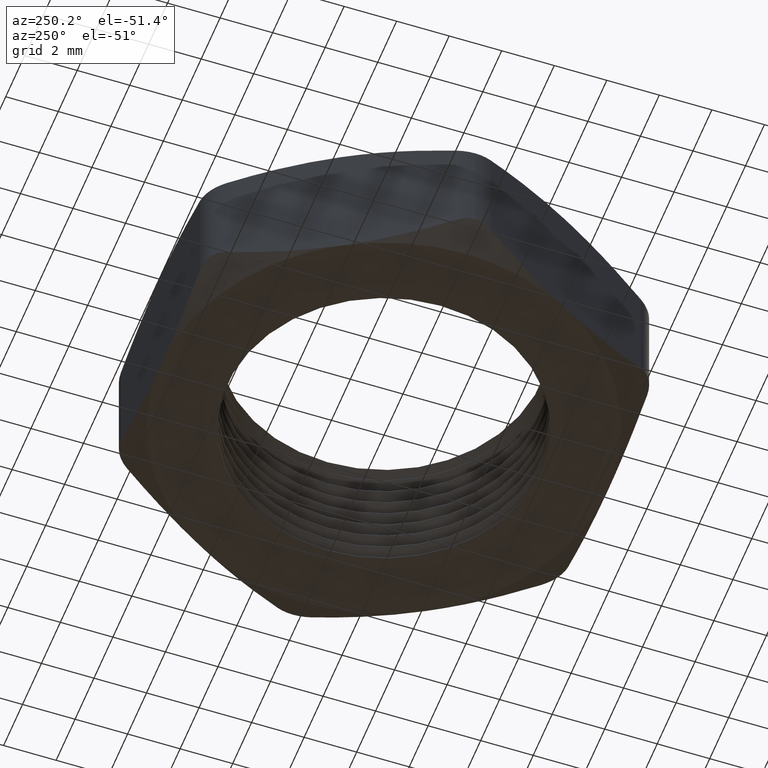
[diagram: clean part render]
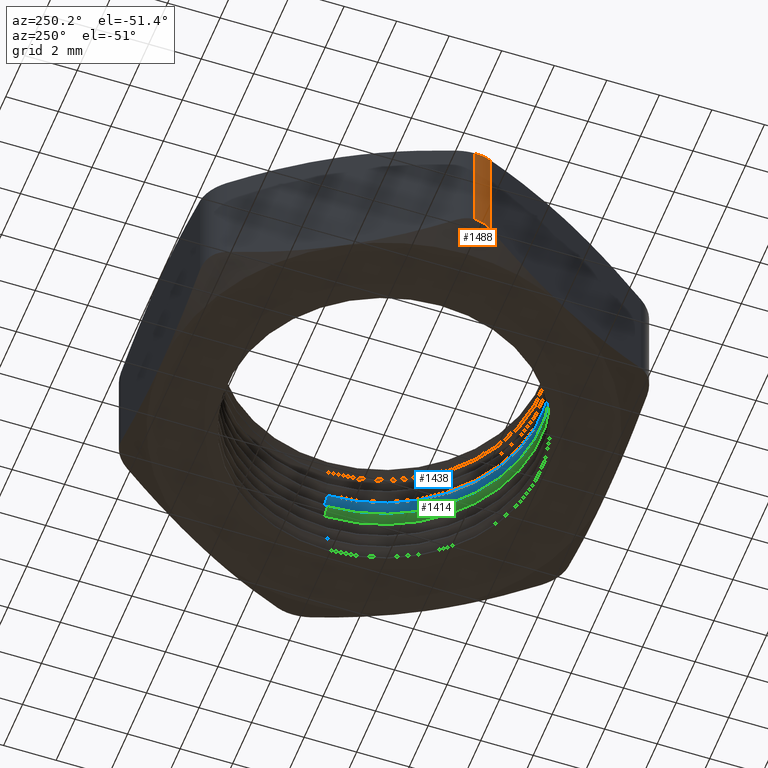
[diagram: same view with three faces highlighted in distinct colors, each labeled with its STEP entity id]
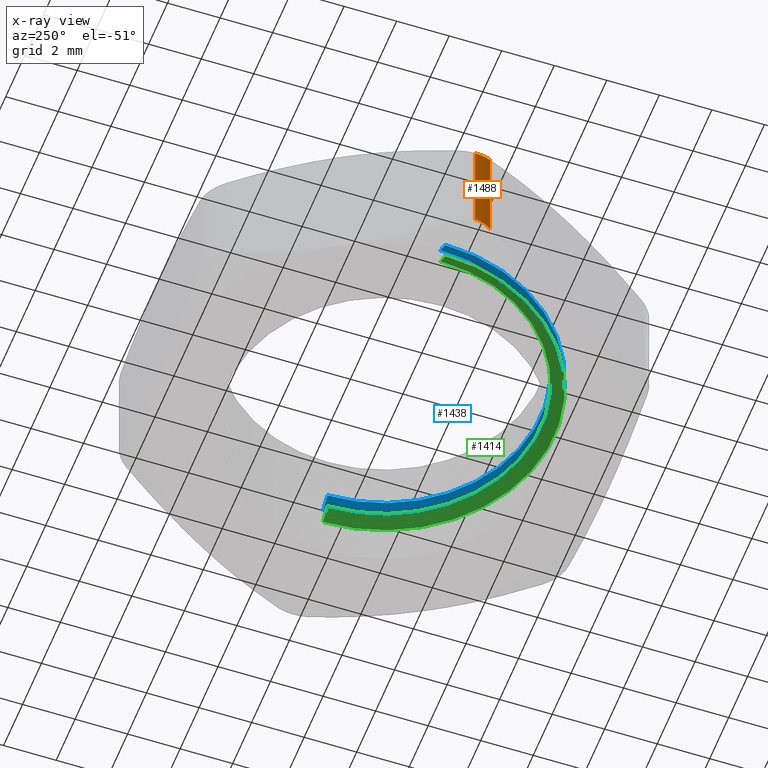
[diagram: x-ray of the same camera — body ghosted, the three highlighted faces saturated]
A machine part, auxiliary view with three faces highlighted in distinct colors.
The next image is the same camera in x-ray (body ghosted, the three faces saturated) — at least one of them is partly hidden behind the body in this view.
Their STEP definitions:

[orange] entity #1488 — the highlighted cylindrical surface (edge-blend (fillet) strip) has radius 1.27 mm, axis along (0, 0, -1).
#93 = DIRECTION ( 'NONE',  ( 0.0000000000000000000, 0.0000000000000000000, -1.000000000000000000 ) ) ;
#94 = VECTOR ( 'NONE', #93, 39.37007874015748100 ) ;
#95 = CARTESIAN_POINT ( 'NONE',  ( -0.3723909236273086300, -0.02499999999999983800, 0.2000000000000000100 ) ) ;
#96 = LINE ( 'NONE', #95, #94 ) ;
#610 = CARTESIAN_POINT ( 'NONE',  ( -0.3723909236273086300, -0.02499999999999975500, 0.02207161127339470400 ) ) ;
#611 = DIRECTION ( 'NONE',  ( -1.000000000000000000, 0.0000000000000000000, 0.0000000000000000000 ) ) ;
#612 = DIRECTION ( 'NONE',  ( 0.0000000000000000000, 0.0000000000000000000, -1.000000000000000000 ) ) ;
#613 = CARTESIAN_POINT ( 'NONE',  ( -0.3290896534380866600, 1.152498372327111000E-016, 0.2000000000000000100 ) ) ;
#614 = AXIS2_PLACEMENT_3D ( 'NONE', #613, #612, #611 ) ;
#615 = CYLINDRICAL_SURFACE ( 'NONE', #614, 0.05000000000000001000 ) ;
#616 = FACE_OUTER_BOUND ( 'NONE', #1484, .T. ) ;
#620 = CARTESIAN_POINT ( 'NONE',  ( -0.3723909236273086300, -0.02499999999999984900, 0.1779283887266050500 ) ) ;
#621 = CARTESIAN_POINT ( 'NONE',  ( -0.3745427104477402300, -0.02127299589995569300, 0.1768329772520503300 ) ) ;
#622 = CARTESIAN_POINT ( 'NONE',  ( -0.3762331691085615300, -0.01721539816637658900, 0.1759804665609513700 ) ) ;
#623 = CARTESIAN_POINT ( 'NONE',  ( -0.3784961774440683300, -0.008824760021981062000, 0.1748417381203157300 ) ) ;
#624 = CARTESIAN_POINT ( 'NONE',  ( -0.3790896534380835400, -0.004386855205189923500, 0.1745448267190450600 ) ) ;
#625 = CARTESIAN_POINT ( 'NONE',  ( -0.3790896534382614000, -2.031860639847280700E-014, 0.1745448267189560200 ) ) ;
#628 = B_SPLINE_CURVE_WITH_KNOTS ( 'NONE', 3,
 ( #625, #624, #623, #622, #621, #620 ),
 .UNSPECIFIED., .F., .F.,
 ( 4, 2, 4 ),
 ( 0.0006696470749432705500, 0.001003406031083166900, 0.001337164987223063600 ),
 .UNSPECIFIED. ) ;
#637 = CARTESIAN_POINT ( 'NONE',  ( -0.3790896534382614000, 2.043385621942243500E-014, 0.02545517328104399500 ) ) ;
#638 = CARTESIAN_POINT ( 'NONE',  ( -0.3790896534380897000, -0.004400847830842706500, 0.02545517328095795900 ) ) ;
#639 = CARTESIAN_POINT ( 'NONE',  ( -0.3785021646700598200, -0.008811739698045753900, 0.02516128404701351700 ) ) ;
#640 = CARTESIAN_POINT ( 'NONE',  ( -0.3762129347330971900, -0.01728118580269577900, 0.02400934215641796100 ) ) ;
#641 = CARTESIAN_POINT ( 'NONE',  ( -0.3745489581288084000, -0.02126217459891548100, 0.02317020325889368100 ) ) ;
#642 = CARTESIAN_POINT ( 'NONE',  ( -0.3723909236273086300, -0.02499999999999975500, 0.02207161127339470400 ) ) ;
#647 = B_SPLINE_CURVE_WITH_KNOTS ( 'NONE', 3,
 ( #642, #641, #640, #639, #638, #637 ),
 .UNSPECIFIED., .F., .F.,
 ( 4, 2, 4 ),
 ( 6.594944350062753400E-019, 0.0003348235374713606500, 0.0006696470749427206400 ),
 .UNSPECIFIED. ) ;
#648 = CARTESIAN_POINT ( 'NONE',  ( -0.3790896534382614000, 2.043385621942243500E-014, 0.02545517328104399500 ) ) ;
#649 = DIRECTION ( 'NONE',  ( 0.0000000000000000000, 0.0000000000000000000, -1.000000000000000000 ) ) ;
#650 = VECTOR ( 'NONE', #649, 39.37007874015748100 ) ;
#651 = CARTESIAN_POINT ( 'NONE',  ( -0.3790896534380867000, 1.152498372327111000E-016, 0.2000000000000000100 ) ) ;
#652 = LINE ( 'NONE', #651, #650 ) ;
#653 = CARTESIAN_POINT ( 'NONE',  ( -0.3723909236273086300, -0.02499999999999984900, 0.1779283887266050500 ) ) ;
#659 = CARTESIAN_POINT ( 'NONE',  ( -0.3790896534382614000, -2.031860639847280700E-014, 0.1745448267189560200 ) ) ;
#1478 = ORIENTED_EDGE ( 'NONE', *, *, #1479, .F. ) ;
#1479 = EDGE_CURVE ( 'NONE', #1504, #1505, #628, .T. ) ;
#1484 = EDGE_LOOP ( 'NONE', ( #1478, #1506, #1509, #1546 ) ) ;
#1488 = ADVANCED_FACE ( 'NONE', ( #616 ), #615, .T. ) ;
#1489 = VERTEX_POINT ( 'NONE', #610 ) ;
#1504 = VERTEX_POINT ( 'NONE', #659 ) ;
#1505 = VERTEX_POINT ( 'NONE', #653 ) ;
#1506 = ORIENTED_EDGE ( 'NONE', *, *, #1507, .T. ) ;
#1507 = EDGE_CURVE ( 'NONE', #1504, #1508, #652, .T. ) ;
#1508 = VERTEX_POINT ( 'NONE', #648 ) ;
#1509 = ORIENTED_EDGE ( 'NONE', *, *, #1510, .F. ) ;
#1510 = EDGE_CURVE ( 'NONE', #1489, #1508, #647, .T. ) ;
#1546 = ORIENTED_EDGE ( 'NONE', *, *, #1547, .F. ) ;
#1547 = EDGE_CURVE ( 'NONE', #1505, #1489, #96, .T. ) ;

[blue] entity #1438 — the highlighted conical surface has half-angle 60 deg.
#575 = DIRECTION ( 'NONE',  ( -0.8660254037844441500, 0.0000000000000000000, -0.4999999999999902300 ) ) ;
#576 = VECTOR ( 'NONE', #575, 39.37007874015748100 ) ;
#577 = CARTESIAN_POINT ( 'NONE',  ( -0.2550000000000000000, 0.0000000000000000000, 0.1134529946162078100 ) ) ;
#578 = LINE ( 'NONE', #577, #576 ) ;
#589 = DIRECTION ( 'NONE',  ( -1.000000000000000000, 0.0000000000000000000, 0.0000000000000000000 ) ) ;
#668 = DIRECTION ( 'NONE',  ( 0.0000000000000000000, 0.0000000000000000000, -1.000000000000000000 ) ) ;
#669 = CARTESIAN_POINT ( 'NONE',  ( 0.0000000000000000000, 0.0000000000000000000, 0.1134529946162078100 ) ) ;
#670 = AXIS2_PLACEMENT_3D ( 'NONE', #669, #668, #589 ) ;
#671 = CONICAL_SURFACE ( 'NONE', #670, 0.2550000000000000000, 1.047197551196609000 ) ;
#698 = CARTESIAN_POINT ( 'NONE',  ( 0.2550000000000000000, 3.122849337825750500E-017, 0.1134529946162078100 ) ) ;
#699 = DIRECTION ( 'NONE',  ( 1.000000000000000000, 0.0000000000000000000, 0.0000000000000000000 ) ) ;
#700 = DIRECTION ( 'NONE',  ( 0.0000000000000000000, 0.0000000000000000000, 1.000000000000000000 ) ) ;
#701 = CARTESIAN_POINT ( 'NONE',  ( 0.0000000000000000000, 0.0000000000000000000, 0.1134529946162078100 ) ) ;
#702 = AXIS2_PLACEMENT_3D ( 'NONE', #701, #700, #699 ) ;
#703 = CIRCLE ( 'NONE', #702, 0.2550000000000000000 ) ;
#718 = FACE_OUTER_BOUND ( 'NONE', #1439, .T. ) ;
#1374 = VERTEX_POINT ( 'NONE', #2036 ) ;
#1400 = ORIENTED_EDGE ( 'NONE', *, *, #1444, .F. ) ;
#1408 = ORIENTED_EDGE ( 'NONE', *, *, #1413, .T. ) ;
#1412 = ORIENTED_EDGE ( 'NONE', *, *, #1461, .F. ) ;
#1413 = EDGE_CURVE ( 'NONE', #1417, #1445, #2079, .T. ) ;
#1417 = VERTEX_POINT ( 'NONE', #2069 ) ;
#1421 = ORIENTED_EDGE ( 'NONE', *, *, #1422, .T. ) ;
#1422 = EDGE_CURVE ( 'NONE', #1423, #1417, #2127, .T. ) ;
#1423 = VERTEX_POINT ( 'NONE', #2118 ) ;
#1438 = ADVANCED_FACE ( 'NONE', ( #718 ), #671, .F. ) ;
#1439 = EDGE_LOOP ( 'NONE', ( #1421, #1408, #1400, #1412 ) ) ;
#1444 = EDGE_CURVE ( 'NONE', #1374, #1445, #703, .T. ) ;
#1445 = VERTEX_POINT ( 'NONE', #698 ) ;
#1461 = EDGE_CURVE ( 'NONE', #1423, #1374, #578, .T. ) ;
#2036 = CARTESIAN_POINT ( 'NONE',  ( -0.2550000000000000000, 0.0000000000000000000, 0.1134529946162078100 ) ) ;
#2069 = CARTESIAN_POINT ( 'NONE',  ( 0.2349999999999999900, 2.877919977996279800E-017, 0.1250000000000000300 ) ) ;
#2076 = DIRECTION ( 'NONE',  ( 0.8660254037844441500, 1.060575238724913900E-016, -0.4999999999999902300 ) ) ;
#2077 = VECTOR ( 'NONE', #2076, 39.37007874015748100 ) ;
#2078 = CARTESIAN_POINT ( 'NONE',  ( 0.2550000000000000000, 3.122849337825750500E-017, 0.1134529946162078100 ) ) ;
#2079 = LINE ( 'NONE', #2078, #2077 ) ;
#2118 = CARTESIAN_POINT ( 'NONE',  ( -0.2349999999999999900, 0.0000000000000000000, 0.1250000000000000300 ) ) ;
#2119 = DIRECTION ( 'NONE',  ( 1.000000000000000000, 0.0000000000000000000, 0.0000000000000000000 ) ) ;
#2120 = DIRECTION ( 'NONE',  ( 0.0000000000000000000, 0.0000000000000000000, 1.000000000000000000 ) ) ;
#2121 = CARTESIAN_POINT ( 'NONE',  ( 0.0000000000000000000, 0.0000000000000000000, 0.1250000000000000300 ) ) ;
#2122 = AXIS2_PLACEMENT_3D ( 'NONE', #2121, #2120, #2119 ) ;
#2127 = CIRCLE ( 'NONE', #2122, 0.2349999999999999900 ) ;

[green] entity #1414 — the highlighted conical surface has half-angle 60 deg.
#1368 = ORIENTED_EDGE ( 'NONE', *, *, #1411, .F. ) ;
#1370 = VERTEX_POINT ( 'NONE', #2043 ) ;
#1379 = VERTEX_POINT ( 'NONE', #1997 ) ;
#1380 = EDGE_CURVE ( 'NONE', #1379, #1381, #1996, .T. ) ;
#1381 = VERTEX_POINT ( 'NONE', #1991 ) ;
#1382 = EDGE_CURVE ( 'NONE', #1370, #1387, #1990, .T. ) ;
#1387 = VERTEX_POINT ( 'NONE', #2030 ) ;
#1390 = EDGE_LOOP ( 'NONE', ( #1415, #1477, #1435, #1368 ) ) ;
#1411 = EDGE_CURVE ( 'NONE', #1370, #1379, #2083, .T. ) ;
#1414 = ADVANCED_FACE ( 'NONE', ( #2075 ), #2074, .F. ) ;
#1415 = ORIENTED_EDGE ( 'NONE', *, *, #1382, .T. ) ;
#1434 = EDGE_CURVE ( 'NONE', #1387, #1381, #2100, .T. ) ;
#1435 = ORIENTED_EDGE ( 'NONE', *, *, #1380, .F. ) ;
#1477 = ORIENTED_EDGE ( 'NONE', *, *, #1434, .T. ) ;
#1986 = DIRECTION ( 'NONE',  ( 1.000000000000000000, 0.0000000000000000000, 0.0000000000000000000 ) ) ;
#1987 = DIRECTION ( 'NONE',  ( 0.0000000000000000000, 0.0000000000000000000, 1.000000000000000000 ) ) ;
#1988 = CARTESIAN_POINT ( 'NONE',  ( 0.0000000000000000000, 0.0000000000000000000, 0.1000000000000000100 ) ) ;
#1989 = AXIS2_PLACEMENT_3D ( 'NONE', #1988, #1987, #1986 ) ;
#1990 = CIRCLE ( 'NONE', #1989, 0.2349999999999999900 ) ;
#1991 = CARTESIAN_POINT ( 'NONE',  ( 0.2550000000000000000, 3.122849337825750500E-017, 0.08845299461620780000 ) ) ;
#1992 = DIRECTION ( 'NONE',  ( 1.000000000000000000, 0.0000000000000000000, 0.0000000000000000000 ) ) ;
#1993 = DIRECTION ( 'NONE',  ( 0.0000000000000000000, 0.0000000000000000000, 1.000000000000000000 ) ) ;
#1994 = CARTESIAN_POINT ( 'NONE',  ( 0.0000000000000000000, 0.0000000000000000000, 0.08845299461620780000 ) ) ;
#1995 = AXIS2_PLACEMENT_3D ( 'NONE', #1994, #1993, #1992 ) ;
#1996 = CIRCLE ( 'NONE', #1995, 0.2550000000000000000 ) ;
#1997 = CARTESIAN_POINT ( 'NONE',  ( -0.2550000000000000000, 0.0000000000000000000, 0.08845299461620780000 ) ) ;
#2030 = CARTESIAN_POINT ( 'NONE',  ( 0.2349999999999999900, 2.877919977996279800E-017, 0.1000000000000000100 ) ) ;
#2043 = CARTESIAN_POINT ( 'NONE',  ( -0.2349999999999999900, 0.0000000000000000000, 0.1000000000000000100 ) ) ;
#2070 = DIRECTION ( 'NONE',  ( -1.000000000000000000, 0.0000000000000000000, 0.0000000000000000000 ) ) ;
#2071 = DIRECTION ( 'NONE',  ( 0.0000000000000000000, 0.0000000000000000000, -1.000000000000000000 ) ) ;
#2072 = CARTESIAN_POINT ( 'NONE',  ( 0.0000000000000000000, 0.0000000000000000000, 0.08845299461620780000 ) ) ;
#2073 = AXIS2_PLACEMENT_3D ( 'NONE', #2072, #2071, #2070 ) ;
#2074 = CONICAL_SURFACE ( 'NONE', #2073, 0.2550000000000000000, 1.047197551196609000 ) ;
#2075 = FACE_OUTER_BOUND ( 'NONE', #1390, .T. ) ;
#2080 = DIRECTION ( 'NONE',  ( -0.8660254037844441500, 0.0000000000000000000, -0.4999999999999902300 ) ) ;
#2081 = VECTOR ( 'NONE', #2080, 39.37007874015748100 ) ;
#2082 = CARTESIAN_POINT ( 'NONE',  ( -0.2550000000000000000, 0.0000000000000000000, 0.08845299461620780000 ) ) ;
#2083 = LINE ( 'NONE', #2082, #2081 ) ;
#2097 = DIRECTION ( 'NONE',  ( 0.8660254037844441500, 1.060575238724913900E-016, -0.4999999999999902300 ) ) ;
#2098 = VECTOR ( 'NONE', #2097, 39.37007874015748100 ) ;
#2099 = CARTESIAN_POINT ( 'NONE',  ( 0.2550000000000000000, 3.122849337825750500E-017, 0.08845299461620780000 ) ) ;
#2100 = LINE ( 'NONE', #2099, #2098 ) ;